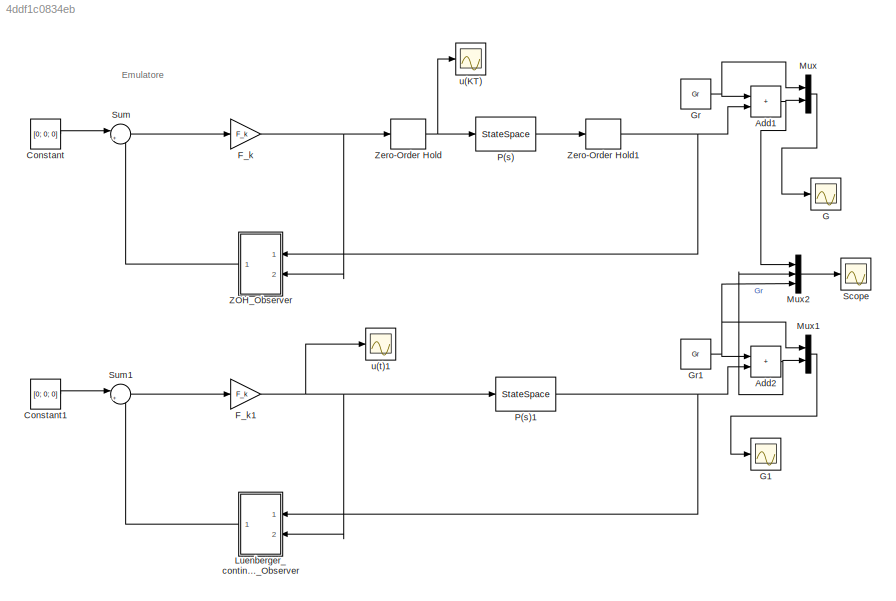
MODEL slx_4ddf1c0834eb
KIND model
CONFIG AbsTol = auto
CONFIG EnableMultiTasking = off
CONFIG FixedStep = auto
CONFIG MaxStep = auto
CONFIG MinStep = auto
CONFIG RelTol = 1e-3
CONFIG SampleTimeConstraint = Unconstrained
CONFIG SolverName = VariableStepAuto
CONFIG StartTime = 0.0
CONFIG StopTime = 10000
BLOCK [Sum] Add1
  IconShape = rectangular
  Ports = [2, 1]
BLOCK [Sum] Add2
  IconShape = rectangular
  Ports = [2, 1]
BLOCK [Constant] Constant
  Value = [0; 0; 0]
BLOCK [Constant] Constant1
  Value = [0; 0; 0]
BLOCK [Gain] F_k
  Gain = F_k
  Multiplication = Matrix(K*u)
BLOCK [Gain] F_k1
  Gain = F_k
  Multiplication = Matrix(K*u)
BLOCK [Scope] G
  Floating = off
  NumInputPorts = 1
  Ports = [1]
  ScopeSpecificationString = Simulink.scopes.TimeScopeBlockCfg('CurrentConfiguration', extmgr.ConfigurationSet(extmgr.Configuration('Core','General UI',true,'FigureColor',[0 0 0]),extmgr.Configuration('Core','Source UI',true),extmgr.Configuration('Sources','WiredSimulink',true,'DataLoggingVariableName','ScopeData2'),extmgr.Configuration('Visuals','Time Domain',true,'SerializedDisplays',{struct('MinYLimReal','99.88228','MaxYLi...<+1708ch>
BLOCK [Scope] G1
  Floating = off
  NumInputPorts = 1
  Ports = [1]
  ScopeSpecificationString = Simulink.scopes.TimeScopeBlockCfg('CurrentConfiguration', extmgr.ConfigurationSet(extmgr.Configuration('Core','General UI',true,'FigureColor',[0 0 0]),extmgr.Configuration('Core','Source UI',true),extmgr.Configuration('Sources','WiredSimulink',true,'DataLoggingVariableName','ScopeData1'),extmgr.Configuration('Visuals','Time Domain',true,'SerializedDisplays',{struct('MinYLimReal','100.58235','MaxYL...<+1697ch>
BLOCK [Constant] Gr
  Value = Gr
BLOCK [Constant] Gr1
  Value = Gr
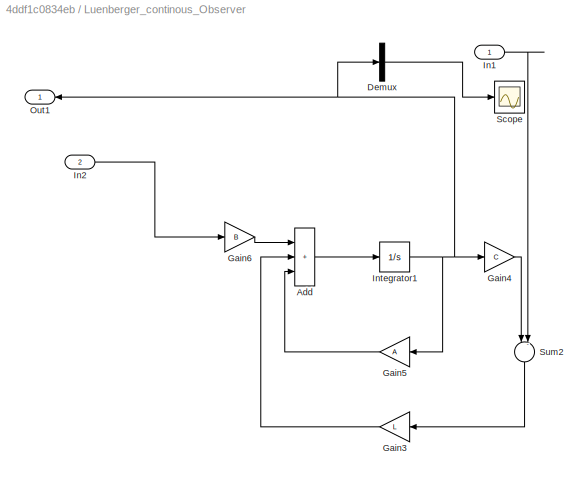
BLOCK [SubSystem] Luenberger_continous_Observer
  NameLocation = top
  Ports = [2, 1]
  RequestExecContextInheritance = off
BLOCK [Sum] Luenberger_continous_Observer/Add
  IconShape = rectangular
  Inputs = +++
  Ports = [3, 1]
BLOCK [Demux] Luenberger_continous_Observer/Demux
  Outputs = 3
  Ports = [1, 3]
BLOCK [Gain] Luenberger_continous_Observer/Gain3
  Gain = L
  Multiplication = Matrix(K*u)
  NameLocation = top
BLOCK [Gain] Luenberger_continous_Observer/Gain4
  Gain = C
  Multiplication = Matrix(K*u)
BLOCK [Gain] Luenberger_continous_Observer/Gain5
  Gain = A
  Multiplication = Matrix(K*u)
  NameLocation = top
BLOCK [Gain] Luenberger_continous_Observer/Gain6
  Gain = B
  Multiplication = Matrix(K*u)
BLOCK [Inport] Luenberger_continous_Observer/In1
BLOCK [Inport] Luenberger_continous_Observer/In2
  Port = 2
BLOCK [Integrator] Luenberger_continous_Observer/Integrator1
  Ports = [1, 1]
BLOCK [Outport] Luenberger_continous_Observer/Out1
BLOCK [Scope] Luenberger_continous_Observer/Scope
  Floating = off
  NumInputPorts = 1
  Ports = [1]
  ScopeSpecificationString = Simulink.scopes.TimeScopeBlockCfg('CurrentConfiguration', extmgr.ConfigurationSet(extmgr.Configuration('Core','General UI',true),extmgr.Configuration('Core','Source UI',true),extmgr.Configuration('Sources','WiredSimulink',true,'DataLoggingVariableName','ScopeData1'),extmgr.Configuration('Visuals','Time Domain',true,'SerializedDisplays',{struct('MinYLimReal','-0.00086','MaxYLimReal','0.00776','YLab...<+1554ch>
BLOCK [Sum] Luenberger_continous_Observer/Sum2
  Inputs = |-+
  NameLocation = left
  Ports = [2, 1]
BLOCK [Mux] Mux
  DisplayOption = bar
  Inputs = 2
  Ports = [2, 1]
BLOCK [Mux] Mux1
  DisplayOption = bar
  Inputs = 2
  Ports = [2, 1]
BLOCK [Mux] Mux2
  DisplayOption = bar
  Inputs = 3
  Ports = [3, 1]
BLOCK [StateSpace] P(s)
  A = A
  B = B
  C = C
  D = 0
  InitialCondition = [130; 0; 0]
  Ports = [1, 1]
BLOCK [StateSpace] P(s)1
  A = A
  B = B
  C = C
  D = 0
  InitialCondition = [130; 0; 0]
  Ports = [1, 1]
BLOCK [Scope] Scope
  Floating = off
  NumInputPorts = 1
  Ports = [1]
  ScopeSpecificationString = Simulink.scopes.TimeScopeBlockCfg('CurrentConfiguration', extmgr.ConfigurationSet(extmgr.Configuration('Core','General UI',true),extmgr.Configuration('Core','Source UI',true),extmgr.Configuration('Sources','WiredSimulink',true,'DataLoggingVariableName','ScopeData1'),extmgr.Configuration('Visuals','Time Domain',true,'SerializedDisplays',{struct('MinYLimReal','103.75','MaxYLimReal','266.25','YLabelR...<+1768ch>
BLOCK [Sum] Sum
  Inputs = |++
  Ports = [2, 1]
BLOCK [Sum] Sum1
  Inputs = |++
  Ports = [2, 1]
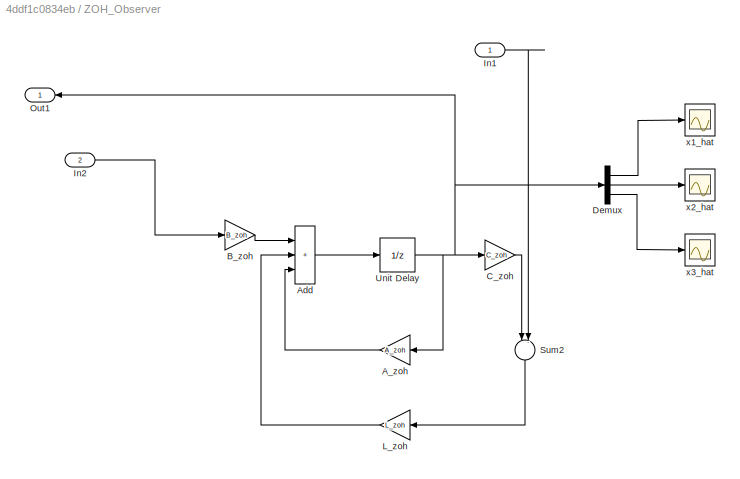
BLOCK [SubSystem] ZOH_Observer
  NameLocation = top
  Ports = [2, 1]
  RequestExecContextInheritance = off
BLOCK [Gain] ZOH_Observer/A_zoh
  Gain = A_zoh
  Multiplication = Matrix(K*u)
  NameLocation = top
BLOCK [Sum] ZOH_Observer/Add
  IconShape = rectangular
  Inputs = +++
  Ports = [3, 1]
BLOCK [Gain] ZOH_Observer/B_zoh
  Gain = B_zoh
  Multiplication = Matrix(K*u)
BLOCK [Gain] ZOH_Observer/C_zoh
  Gain = C_zoh
  Multiplication = Matrix(K*u)
BLOCK [Demux] ZOH_Observer/Demux
  Outputs = 3
  Ports = [1, 3]
BLOCK [Inport] ZOH_Observer/In1
BLOCK [Inport] ZOH_Observer/In2
  Port = 2
BLOCK [Gain] ZOH_Observer/L_zoh
  Gain = L_zoh
  Multiplication = Matrix(K*u)
  NameLocation = top
BLOCK [Outport] ZOH_Observer/Out1
BLOCK [Sum] ZOH_Observer/Sum2
  Inputs = |-+
  NameLocation = left
  Ports = [2, 1]
BLOCK [UnitDelay] ZOH_Observer/Unit Delay
  HasFrameUpgradeWarning = on
  SampleTime = -1
BLOCK [Scope] ZOH_Observer/x1_hat
  Floating = off
  NumInputPorts = 1
  Ports = [1]
  ScopeSpecificationString = Simulink.scopes.TimeScopeBlockCfg('CurrentConfiguration', extmgr.ConfigurationSet(extmgr.Configuration('Core','General UI',true),extmgr.Configuration('Core','Source UI',true),extmgr.Configuration('Sources','WiredSimulink',true,'DataLoggingVariableName','ScopeData1'),extmgr.Configuration('Visuals','Time Domain',true,'SerializedDisplays',{struct('MinYLimReal','-13.38365','MaxYLimReal','120.45284','Y...<+1418ch>
BLOCK [Scope] ZOH_Observer/x2_hat
  Floating = off
  NumInputPorts = 1
  Ports = [1]
  ScopeSpecificationString = Simulink.scopes.TimeScopeBlockCfg('CurrentConfiguration', extmgr.ConfigurationSet(extmgr.Configuration('Core','General UI',true),extmgr.Configuration('Core','Source UI',true),extmgr.Configuration('Sources','WiredSimulink',true,'DataLoggingVariableName','ScopeData2'),extmgr.Configuration('Visuals','Time Domain',true,'SerializedDisplays',{struct('MinYLimReal','-0.00379','MaxYLimReal','0.03412','YLab...<+1408ch>
BLOCK [Scope] ZOH_Observer/x3_hat
  Floating = off
  NumInputPorts = 1
  Ports = [1]
  ScopeSpecificationString = Simulink.scopes.TimeScopeBlockCfg('CurrentConfiguration', extmgr.ConfigurationSet(extmgr.Configuration('Core','General UI',true),extmgr.Configuration('Core','Source UI',true),extmgr.Configuration('Sources','WiredSimulink',true,'DataLoggingVariableName','ScopeData3'),extmgr.Configuration('Visuals','Time Domain',true,'SerializedDisplays',{struct('MinYLimReal','-0.00265','MaxYLimReal','0.02382','YLab...<+1364ch>
BLOCK [ZeroOrderHold] Zero-Order Hold
  SampleTime = Ts
BLOCK [ZeroOrderHold] Zero-Order Hold1
  SampleTime = Ts
BLOCK [Scope] u(KT)
  Floating = off
  NumInputPorts = 1
  Ports = [1]
  ScopeSpecificationString = Simulink.scopes.TimeScopeBlockCfg('CurrentConfiguration', extmgr.ConfigurationSet(extmgr.Configuration('Core','General UI',true,'FigureColor',[0 0 0]),extmgr.Configuration('Core','Source UI',true),extmgr.Configuration('Sources','WiredSimulink',true,'DataLoggingVariableName','ScopeData1'),extmgr.Configuration('Visuals','Time Domain',true,'SerializedDisplays',{struct('MinYLimReal','-0.00057','MaxYLi...<+1662ch>
BLOCK [Scope] u(t)1
  Floating = off
  NumInputPorts = 1
  Ports = [1]
  ScopeSpecificationString = Simulink.scopes.TimeScopeBlockCfg('CurrentConfiguration', extmgr.ConfigurationSet(extmgr.Configuration('Core','General UI',true,'FigureColor',[0 0 0]),extmgr.Configuration('Core','Source UI',true),extmgr.Configuration('Sources','WiredSimulink',true,'DataLoggingVariableName','ScopeData3'),extmgr.Configuration('Visuals','Time Domain',true,'SerializedDisplays',{struct('MinYLimReal','-0.00054','MaxYLi...<+1565ch>
ANNOTATION (root): Emulatore
NET Add1:1 -> Mux2:1, Mux:2
NET Add2:1 -> Mux1:2, Mux2:2
LINE Constant1:1 -> Sum1:1
LINE Constant:1 -> Sum:1
NET F_k1:1 -> Luenberger_continous_Observer:2, P(s)1:1, u(t)1:1
NET F_k:1 -> ZOH_Observer:2, Zero-Order Hold:1
NET Gr1:1 -> Add2:1, Mux1:1, Mux2:3
NET Gr:1 -> Add1:1, Mux:1
LINE Luenberger_continous_Observer/Add:1 -> Luenberger_continous_Observer/Integrator1:1
LINE Luenberger_continous_Observer/Demux:2 -> Luenberger_continous_Observer/Scope:1
LINE Luenberger_continous_Observer/Gain3:1 -> Luenberger_continous_Observer/Add:2
LINE Luenberger_continous_Observer/Gain4:1 -> Luenberger_continous_Observer/Sum2:1
LINE Luenberger_continous_Observer/Gain5:1 -> Luenberger_continous_Observer/Add:3
LINE Luenberger_continous_Observer/Gain6:1 -> Luenberger_continous_Observer/Add:1
LINE Luenberger_continous_Observer/In1:1 -> Luenberger_continous_Observer/Sum2:2
LINE Luenberger_continous_Observer/In2:1 -> Luenberger_continous_Observer/Gain6:1
NET Luenberger_continous_Observer/Integrator1:1 -> Luenberger_continous_Observer/Demux:1, Luenberger_continous_Observer/Gain4:1, Luenberger_continous_Observer/Gain5:1, Luenberger_continous_Observer/Out1:1
LINE Luenberger_continous_Observer/Sum2:1 -> Luenberger_continous_Observer/Gain3:1
LINE Luenberger_continous_Observer:1 -> Sum1:2
LINE Mux1:1 -> G1:1
LINE Mux2:1 -> Scope:1
LINE Mux:1 -> G:1
NET P(s)1:1 -> Add2:2, Luenberger_continous_Observer:1
LINE P(s):1 -> Zero-Order Hold1:1
LINE Sum1:1 -> F_k1:1
LINE Sum:1 -> F_k:1
LINE ZOH_Observer/A_zoh:1 -> ZOH_Observer/Add:3
LINE ZOH_Observer/Add:1 -> ZOH_Observer/Unit Delay:1
LINE ZOH_Observer/B_zoh:1 -> ZOH_Observer/Add:1
LINE ZOH_Observer/C_zoh:1 -> ZOH_Observer/Sum2:1
LINE ZOH_Observer/Demux:1 -> ZOH_Observer/x1_hat:1
LINE ZOH_Observer/Demux:2 -> ZOH_Observer/x2_hat:1
LINE ZOH_Observer/Demux:3 -> ZOH_Observer/x3_hat:1
LINE ZOH_Observer/In1:1 -> ZOH_Observer/Sum2:2
LINE ZOH_Observer/In2:1 -> ZOH_Observer/B_zoh:1
LINE ZOH_Observer/L_zoh:1 -> ZOH_Observer/Add:2
LINE ZOH_Observer/Sum2:1 -> ZOH_Observer/L_zoh:1
NET ZOH_Observer/Unit Delay:1 -> ZOH_Observer/A_zoh:1, ZOH_Observer/C_zoh:1, ZOH_Observer/Demux:1, ZOH_Observer/Out1:1
LINE ZOH_Observer:1 -> Sum:2
NET Zero-Order Hold1:1 -> Add1:2, ZOH_Observer:1
NET Zero-Order Hold:1 -> P(s):1, u(KT):1
note: NET lines group one-source signal fan-out (src -> all destinations, sorted); 1:1 wires keep LINE
